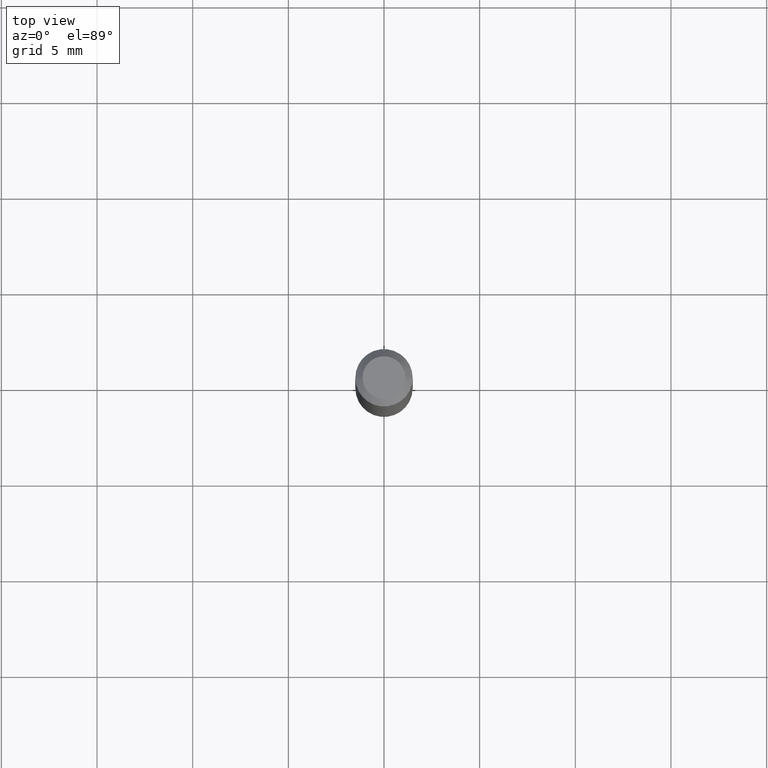
[diagram: clean part render]
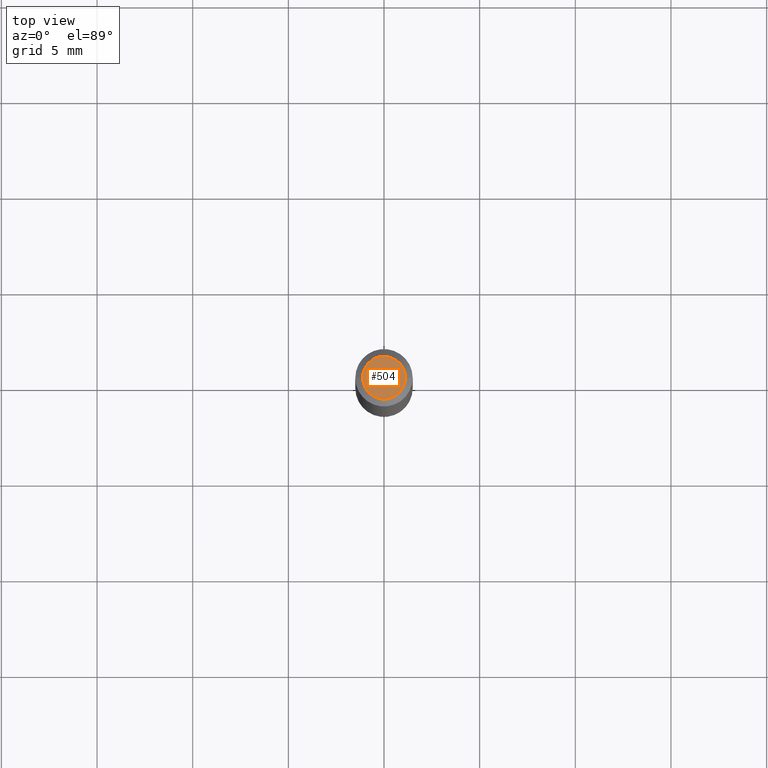
[diagram: same view with one face highlighted and labeled with its STEP entity id]
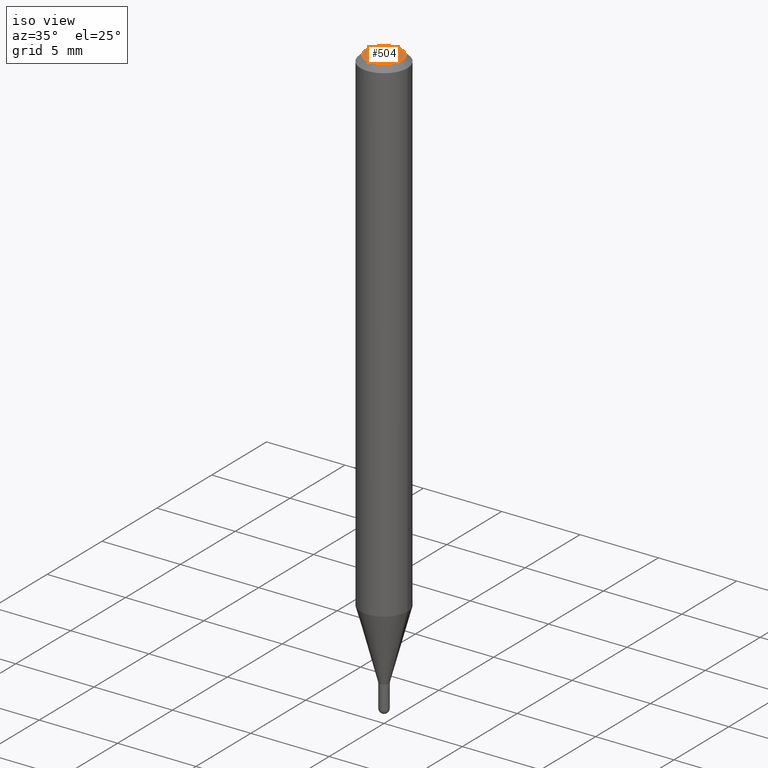
[diagram: same view with one face highlighted and labeled with its STEP entity id]
A machine part, top view. The second image highlights one B-rep face of the part: STEP entity #504.
A second angle (iso view) of the same face is appended — the face is thin or edge-on in the first view.
In plain terms, the highlighted planar face has unit normal (0, -0, -1).
Its self-contained STEP definition (entity closure, byte-faithful):
#10 = ORIENTED_EDGE ( 'NONE', *, *, #438, .T. ) ;
#12 = CARTESIAN_POINT ( 'NONE',  ( -0.04404999999999999888, 3.337856159934031674E-16, -8.050215734195352474E-17 ) ) ;
#50 = EDGE_CURVE ( 'NONE', #203, #72, #468, .T. ) ;
#55 = CARTESIAN_POINT ( 'NONE',  ( 1.968655146103496235E-45, -2.810717800960375713E-31, -8.050215734195126909E-17 ) ) ;
#72 = VERTEX_POINT ( 'NONE', #12 ) ;
#84 = ORIENTED_EDGE ( 'NONE', *, *, #50, .T. ) ;
#89 = PLANE ( 'NONE',  #209 ) ;
#97 = DIRECTION ( 'NONE',  ( -2.445468806185136597E-29, 3.491481338843145583E-15, 1.000000000000000000 ) ) ;
#123 = DIRECTION ( 'NONE',  ( -1.000000000000000000, 6.982962677686265922E-15, -4.876176775795935793E-29 ) ) ;
#156 = EDGE_LOOP ( 'NONE', ( #10, #84 ) ) ;
#170 = CARTESIAN_POINT ( 'NONE',  ( 0.04404999999999999888, -3.798447818264463530E-16, -8.050215734194887786E-17 ) ) ;
#195 = DIRECTION ( 'NONE',  ( -2.445468806185136597E-29, 3.491481338843145583E-15, 1.000000000000000000 ) ) ;
#202 = DIRECTION ( 'NONE',  ( 1.000000000000000000, -6.982962677686265922E-15, 4.888540261209747396E-29 ) ) ;
#203 = VERTEX_POINT ( 'NONE', #170 ) ;
#209 = AXIS2_PLACEMENT_3D ( 'NONE', #367, #323, #123 ) ;
#281 = FACE_OUTER_BOUND ( 'NONE', #156, .T. ) ;
#323 = DIRECTION ( 'NONE',  ( 2.438088387897960049E-29, -3.491481338843145188E-15, -1.000000000000000000 ) ) ;
#366 = DIRECTION ( 'NONE',  ( 1.000000000000000000, -6.982962677686265922E-15, 4.888540261209747396E-29 ) ) ;
#367 = CARTESIAN_POINT ( 'NONE',  ( 3.075995059520799729E-16, 0.04404999999999999888, -1.940508316470162065E-16 ) ) ;
#407 = AXIS2_PLACEMENT_3D ( 'NONE', #483, #195, #366 ) ;
#438 = EDGE_CURVE ( 'NONE', #72, #203, #479, .T. ) ;
#468 = CIRCLE ( 'NONE', #484, 0.04404999999999999888 ) ;
#479 = CIRCLE ( 'NONE', #407, 0.04404999999999999888 ) ;
#483 = CARTESIAN_POINT ( 'NONE',  ( 1.968655146103496235E-45, -2.810717800960375713E-31, -8.050215734195126909E-17 ) ) ;
#484 = AXIS2_PLACEMENT_3D ( 'NONE', #55, #97, #202 ) ;
#504 = ADVANCED_FACE ( 'NONE', ( #281 ), #89, .F. ) ;